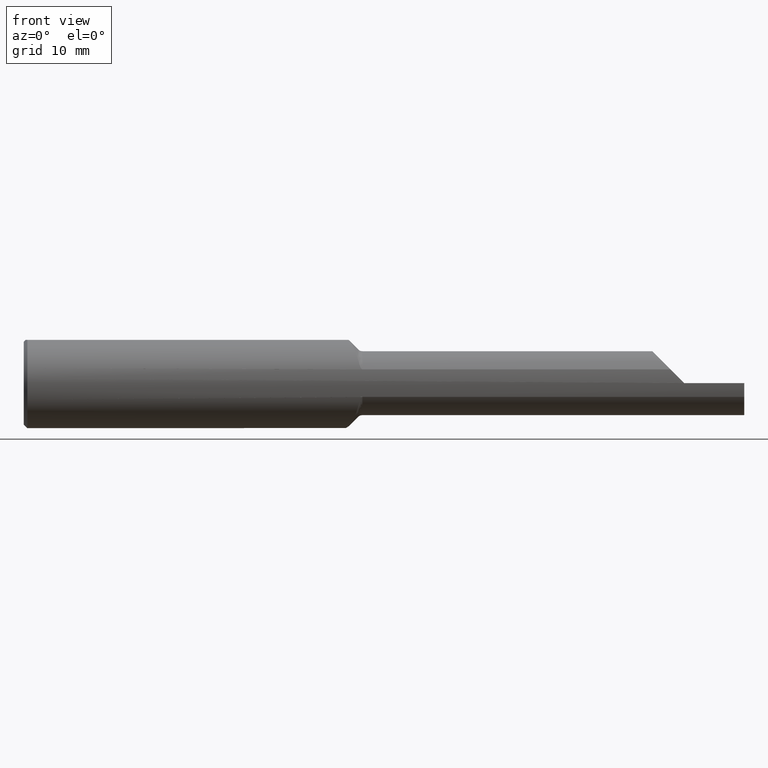
[diagram: clean part render]
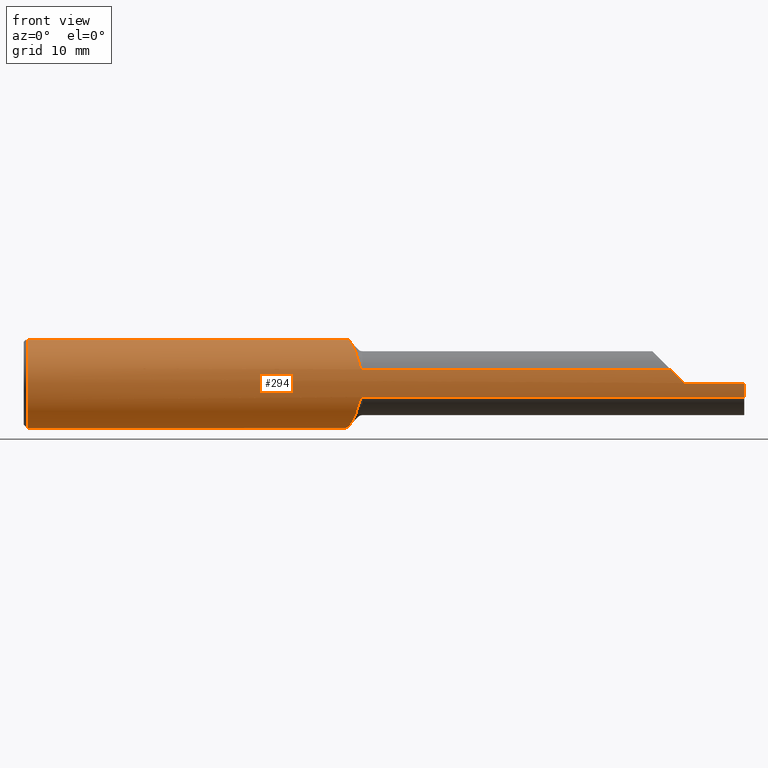
[diagram: same view with one face highlighted and labeled with its STEP entity id]
A machine part, front view. The second image highlights one B-rep face of the part: STEP entity #294.
In plain terms, the highlighted cylindrical surface (partial cylindrical patch) has radius 4.7587 mm, axis along (-1, -0, -0).
Its self-contained STEP definition (entity closure, byte-faithful):
#3 = VERTEX_POINT ( 'NONE', #110 ) ;
#8 = CARTESIAN_POINT ( 'NONE',  ( 1.287233112653665357, 0.1876308245808173403, -0.007313932636929163476 ) ) ;
#9 = ORIENTED_EDGE ( 'NONE', *, *, #937, .T. ) ;
#10 = CARTESIAN_POINT ( 'NONE',  ( 1.404482436652326305, -0.1768381092552934741, 0.06189371971083559160 ) ) ;
#12 = CARTESIAN_POINT ( 'NONE',  ( 0.01500000000000407431, 0.05073361804563106953, 0.1803500000000000381 ) ) ;
#13 = CARTESIAN_POINT ( 'NONE',  ( 1.302626747636566940, 0.1247708322425328670, -0.1403109275308252191 ) ) ;
#20 = CARTESIAN_POINT ( 'NONE',  ( 1.310463333522016383, 0.09439550663752108162, -0.1619501463759350501 ) ) ;
#36 = CARTESIAN_POINT ( 'NONE',  ( 1.394297910623151671, -0.1651165431336510947, -0.08885413392849973724 ) ) ;
#46 = CARTESIAN_POINT ( 'NONE',  ( 1.390253514619542274, -0.1553904236379953230, -0.1052844192764658127 ) ) ;
#53 = VERTEX_POINT ( 'NONE', #934 ) ;
#59 = DIRECTION ( 'NONE',  ( 1.000000000000000000, 0.000000000000000000, 0.000000000000000000 ) ) ;
#60 =( BOUNDED_CURVE ( )  B_SPLINE_CURVE ( 3, ( #556, #181, #634, #919 ),
 .UNSPECIFIED., .F., .F. ) 
 B_SPLINE_CURVE_WITH_KNOTS ( ( 4, 4 ),
 ( 4.715858429565469301, 5.023262387692851050 ),
 .UNSPECIFIED. ) 
 CURVE ( )  GEOMETRIC_REPRESENTATION_ITEM ( )  RATIONAL_B_SPLINE_CURVE ( ( 1.000000000000000000, 0.9921407246595839169, 0.9921407246595839169, 1.000000000000000000 ) ) 
 REPRESENTATION_ITEM ( '' )  );
#67 = LINE ( 'NONE', #1177, #766 ) ;
#83 = VERTEX_POINT ( 'NONE', #189 ) ;
#85 = CARTESIAN_POINT ( 'NONE',  ( 0.01500000000000407431, 0.000000000000000000, -0.1873499999999999888 ) ) ;
#86 = DIRECTION ( 'NONE',  ( -1.000000000000000000, -0.000000000000000000, -0.000000000000000000 ) ) ;
#91 = CARTESIAN_POINT ( 'NONE',  ( 1.287801414367355290, 0.1852400666705822929, 0.03079028734492995564 ) ) ;
#99 = CARTESIAN_POINT ( 'NONE',  ( 1.294523128465643991, 0.1573629312742696462, -0.1024417037855125112 ) ) ;
#103 = CARTESIAN_POINT ( 'NONE',  ( 1.378571360006487501, -0.1256812272418076082, -0.1393892198534536220 ) ) ;
#107 = VERTEX_POINT ( 'NONE', #12 ) ;
#110 = CARTESIAN_POINT ( 'NONE',  ( 1.322226761124839722, 0.05073361804563108340, 0.1803500000000000381 ) ) ;
#111 = CARTESIAN_POINT ( 'NONE',  ( 1.287216210840755215, 0.1877021456528151777, 0.005461557674737399330 ) ) ;
#128 = CARTESIAN_POINT ( 'NONE',  ( 1.408448095044418924, -0.1782309609829300645, -0.05774179208042244660 ) ) ;
#135 = CARTESIAN_POINT ( 'NONE',  ( 1.406875481135652528, -0.1778427423524751305, 0.05892677987795071071 ) ) ;
#139 = CARTESIAN_POINT ( 'NONE',  ( 1.410355339059327306, -0.1783697086546704169, 0.05730854678359931925 ) ) ;
#158 = FACE_OUTER_BOUND ( 'NONE', #736, .T. ) ;
#171 = CYLINDRICAL_SURFACE ( 'NONE', #830, 0.1873499999999999888 ) ;
#178 = EDGE_CURVE ( 'NONE', #214, #3, #527, .T. ) ;
#181 = CARTESIAN_POINT ( 'NONE',  ( 2.730726762412658104, -0.1872820046412290440, 0.01992323758734193540 ) ) ;
#189 = CARTESIAN_POINT ( 'NONE',  ( 1.354968261256594531, -0.05835000000000002685, 0.1780317387434050269 ) ) ;
#191 = ORIENTED_EDGE ( 'NONE', *, *, #1128, .T. ) ;
#198 = CIRCLE ( 'NONE', #948, 0.1873499999999999888 ) ;
#200 = CARTESIAN_POINT ( 'NONE',  ( 1.396159917231948544, -0.1685583276048898405, 0.08211736450972875745 ) ) ;
#201 = CARTESIAN_POINT ( 'NONE',  ( 3.000000000000000444, -0.1873499999999998222, -6.429183357567480113E-17 ) ) ;
#203 = CARTESIAN_POINT ( 'NONE',  ( 1.319337034764406891, 0.06115010668878900768, -0.1775186634490950599 ) ) ;
#205 = CARTESIAN_POINT ( 'NONE',  ( 1.381727261142596364, -0.1339314736004382222, -0.1314911332688373513 ) ) ;
#208 = CARTESIAN_POINT ( 'NONE',  ( 1.291376529822215735, 0.1703085496625234840, 0.07907260733930802921 ) ) ;
#214 = VERTEX_POINT ( 'NONE', #341 ) ;
#215 = CARTESIAN_POINT ( 'NONE',  ( 1.361924480952844796, -0.07925979411789360607, -0.1701257993398435087 ) ) ;
#216 = VECTOR ( 'NONE', #1019, 39.37007874015748143 ) ;
#219 = AXIS2_PLACEMENT_3D ( 'NONE', #468, #284, #291 ) ;
#223 = CARTESIAN_POINT ( 'NONE',  ( 1.406263810976656981, -0.1776167352753859341, -0.05960650000845362645 ) ) ;
#226 = VERTEX_POINT ( 'NONE', #999 ) ;
#237 = CARTESIAN_POINT ( 'NONE',  ( 0.01500000000000270388, -0.05073361804563293609, 0.1803500000000000381 ) ) ;
#262 = EDGE_CURVE ( 'NONE', #1137, #83, #881, .T. ) ;
#263 = ORIENTED_EDGE ( 'NONE', *, *, #707, .T. ) ;
#265 = CARTESIAN_POINT ( 'NONE',  ( 0.01500000000000407431, 0.000000000000000000, 0.000000000000000000 ) ) ;
#279 = LINE ( 'NONE', #654, #216 ) ;
#281 = CARTESIAN_POINT ( 'NONE',  ( 1.302344364721590653, 0.1258879061987050185, 0.1393028251938591699 ) ) ;
#283 = EDGE_CURVE ( 'NONE', #586, #533, #60, .T. ) ;
#284 = DIRECTION ( 'NONE',  ( -1.000000000000000000, -0.000000000000000000, -0.000000000000000000 ) ) ;
#287 = CARTESIAN_POINT ( 'NONE',  ( 1.300366864174358650, 0.1337561031483592289, -0.1317747899903143061 ) ) ;
#290 = AXIS2_PLACEMENT_3D ( 'NONE', #320, #1067, #505 ) ;
#291 = DIRECTION ( 'NONE',  ( 0.000000000000000000, 0.000000000000000000, 1.000000000000000000 ) ) ;
#294 = ADVANCED_FACE ( 'NONE', ( #158 ), #171, .T. ) ;
#297 = CARTESIAN_POINT ( 'NONE',  ( 1.322226761124839722, 0.05073361804563108340, 0.1803500000000000381 ) ) ;
#299 = CARTESIAN_POINT ( 'NONE',  ( 1.372103263110221683, -0.1082043198593515831, -0.1533523741457445966 ) ) ;
#307 = EDGE_CURVE ( 'NONE', #83, #330, #1174, .T. ) ;
#320 = CARTESIAN_POINT ( 'NONE',  ( 0.01500000000000407431, 0.000000000000000000, 0.000000000000000000 ) ) ;
#327 = CARTESIAN_POINT ( 'NONE',  ( 1.410355339059327306, -0.1783697086546704169, -0.05730854678359931925 ) ) ;
#330 = VERTEX_POINT ( 'NONE', #358 ) ;
#333 = DIRECTION ( 'NONE',  ( 1.000000000000000000, 0.000000000000000000, 0.000000000000000000 ) ) ;
#341 = CARTESIAN_POINT ( 'NONE',  ( 1.354968261256594753, -0.05834999999999997133, -0.1780317387434049159 ) ) ;
#345 = CARTESIAN_POINT ( 'NONE',  ( 1.354968261256594753, -0.05834999999999997133, -0.1780317387434049159 ) ) ;
#352 = EDGE_CURVE ( 'NONE', #459, #355, #67, .T. ) ;
#355 = VERTEX_POINT ( 'NONE', #390 ) ;
#358 = CARTESIAN_POINT ( 'NONE',  ( 1.392677669529663875, -0.1612201248618147231, 0.09543633395903709793 ) ) ;
#369 = CIRCLE ( 'NONE', #290, 0.1873499999999999888 ) ;
#372 = CARTESIAN_POINT ( 'NONE',  ( 1.296040650611813838, 0.1511645985810749770, 0.1113904599852967442 ) ) ;
#374 = CARTESIAN_POINT ( 'NONE',  ( 1.403568594541375614, -0.1762593147278525285, 0.06352779236237585114 ) ) ;
#377 = CARTESIAN_POINT ( 'NONE',  ( 1.310048160486880553, 0.09592332149754158321, 0.1614042140840566408 ) ) ;
#385 = CARTESIAN_POINT ( 'NONE',  ( 1.306401947506067973, 0.1100286960033594746, -0.1517643969169450158 ) ) ;
#389 = CARTESIAN_POINT ( 'NONE',  ( 1.410355339059327306, -0.1783697086546704169, 0.05730854678359931925 ) ) ;
#390 = CARTESIAN_POINT ( 'NONE',  ( 2.750000000000000444, -0.1873499999999999610, -6.429183357567478880E-17 ) ) ;
#400 = CARTESIAN_POINT ( 'NONE',  ( 2.140000000000000568, -0.1783697086546704169, -0.05730854678359931925 ) ) ;
#406 = CARTESIAN_POINT ( 'NONE',  ( 1.401088181464120952, -0.1744387181921877306, -0.06843700474515750087 ) ) ;
#414 = ORIENTED_EDGE ( 'NONE', *, *, #1059, .F. ) ;
#434 = EDGE_CURVE ( 'NONE', #1137, #538, #279, .T. ) ;
#454 = ORIENTED_EDGE ( 'NONE', *, *, #283, .T. ) ;
#459 = VERTEX_POINT ( 'NONE', #201 ) ;
#462 = CARTESIAN_POINT ( 'NONE',  ( 1.358450646806901307, -0.06897510976000158223, 0.1745493531930977782 ) ) ;
#466 = CARTESIAN_POINT ( 'NONE',  ( 1.294308147217179794, 0.1582425620373410780, 0.1010780435082064971 ) ) ;
#468 = CARTESIAN_POINT ( 'NONE',  ( 2.750000000000000444, 0.000000000000000000, 0.000000000000000000 ) ) ;
#472 = CARTESIAN_POINT ( 'NONE',  ( 1.288563873827742956, 0.1820409455122642406, -0.04473493752744760188 ) ) ;
#478 = CARTESIAN_POINT ( 'NONE',  ( 1.315888065801316564, 0.07390163537251728809, 0.1726011362085435041 ) ) ;
#490 = CARTESIAN_POINT ( 'NONE',  ( 1.392677669529665874, -0.1612201248618110316, -0.09543633395904392580 ) ) ;
#497 = DIRECTION ( 'NONE',  ( -1.000000000000000000, -0.000000000000000000, -0.000000000000000000 ) ) ;
#501 = CARTESIAN_POINT ( 'NONE',  ( 1.410355339059327306, -0.1783697086546704169, -0.05730854678359931925 ) ) ;
#505 = DIRECTION ( 'NONE',  ( 0.000000000000000000, 0.000000000000000000, -1.000000000000000000 ) ) ;
#508 = CARTESIAN_POINT ( 'NONE',  ( 2.750000000000000444, -0.1873488724278853934, 0.0006500000000006096170 ) ) ;
#514 = EDGE_CURVE ( 'NONE', #53, #1159, #677, .T. ) ;
#516 = DIRECTION ( 'NONE',  ( 1.000000000000000000, 0.000000000000000000, 0.000000000000000000 ) ) ;
#521 = CIRCLE ( 'NONE', #979, 0.1873499999999999888 ) ;
#527 = B_SPLINE_CURVE_WITH_KNOTS ( 'NONE', 3,
 ( #345, #715, #643, #740, #1031, #576, #569, #203, #935, #752, #20, #650, #385, #13, #287, #558, #99, #1114, #825, #656, #472, #1120, #745, #8, #111, #91, #853, #1035, #208, #466, #372, #663, #281, #1129, #377, #478, #838, #297 ),
 .UNSPECIFIED., .F., .F.,
 ( 4, 2, 2, 2, 2, 2, 2, 2, 2, 2, 2, 2, 2, 2, 2, 2, 2, 2, 4 ),
 ( 0.01237582103972411328, 0.01333573452915168961, 0.01429564801857926594, 0.01525556150800684227, 0.01621547499743442033, 0.01669543174214820763, 0.01717538848686199493, 0.01813530197628956606, 0.01909521546571713718, 0.02005512895514470831, 0.02053508569985849214, 0.02101504244457227596, 0.02197495593399984709, 0.02293486942342742169, 0.02389478291285498934, 0.02485469640228256394, 0.02581460989171013160, 0.02677452338113770619, 0.02773443687056527732 ),
 .UNSPECIFIED. ) ;
#533 = VERTEX_POINT ( 'NONE', #601 ) ;
#538 = VERTEX_POINT ( 'NONE', #237 ) ;
#545 = VECTOR ( 'NONE', #59, 39.37007874015748143 ) ;
#551 = CARTESIAN_POINT ( 'NONE',  ( 1.390249137328436690, -0.1553798969595272250, 0.1053022019421092637 ) ) ;
#556 = CARTESIAN_POINT ( 'NONE',  ( 2.750000000000000444, -0.1873488724278853934, 0.0006500000000006096170 ) ) ;
#558 = CARTESIAN_POINT ( 'NONE',  ( 1.296320311736755437, 0.1500294446420621930, -0.1129002043701442526 ) ) ;
#560 = EDGE_CURVE ( 'NONE', #226, #1159, #858, .T. ) ;
#567 = CARTESIAN_POINT ( 'NONE',  ( 1.352489247483494639, -0.05073361804563127769, 0.1803500000000000381 ) ) ;
#569 = CARTESIAN_POINT ( 'NONE',  ( 1.325940143936352733, 0.03734480488786563745, -0.1840042851911080635 ) ) ;
#571 = EDGE_CURVE ( 'NONE', #459, #53, #521, .T. ) ;
#576 = CARTESIAN_POINT ( 'NONE',  ( 1.329350153915703547, 0.02533118765943541753, -0.1860229881109676242 ) ) ;
#585 = B_SPLINE_CURVE_WITH_KNOTS ( 'NONE', 3,
 ( #490, #46, #872, #205, #103, #299, #944, #215, #1116, #939 ),
 .UNSPECIFIED., .F., .F.,
 ( 4, 2, 2, 2, 4 ),
 ( 0.008839285664186631586, 0.009723419508071002443, 0.01060755335195537330, 0.01149168719583974242, 0.01237582103972411328 ),
 .UNSPECIFIED. ) ;
#586 = VERTEX_POINT ( 'NONE', #508 ) ;
#596 = CIRCLE ( 'NONE', #219, 0.1873499999999999888 ) ;
#601 = CARTESIAN_POINT ( 'NONE',  ( 2.693341453216400616, -0.1783697086546702781, 0.05730854678359963150 ) ) ;
#608 = CARTESIAN_POINT ( 'NONE',  ( 1.404519358739342749, -0.1768576582156872468, -0.06183736089970494343 ) ) ;
#627 = CARTESIAN_POINT ( 'NONE',  ( 1.361895869629351274, -0.07917488098667772867, 0.1701614833739454880 ) ) ;
#632 = CARTESIAN_POINT ( 'NONE',  ( 2.140000000000000568, -0.1783697086546704169, 0.05730854678359931925 ) ) ;
#634 = CARTESIAN_POINT ( 'NONE',  ( 2.711690972638300057, -0.1842652404698977286, 0.03895902736170058639 ) ) ;
#643 = CARTESIAN_POINT ( 'NONE',  ( 1.347483243306722756, -0.03515109766243828399, -0.1844245065291031938 ) ) ;
#646 = DIRECTION ( 'NONE',  ( 0.000000000000000000, 0.000000000000000000, -1.000000000000000000 ) ) ;
#650 = CARTESIAN_POINT ( 'NONE',  ( 1.307730347949919825, 0.1048826378083085042, -0.1553640687897695771 ) ) ;
#654 = CARTESIAN_POINT ( 'NONE',  ( 3.000000000000000444, -0.05073361804563126382, 0.1803499999999999548 ) ) ;
#656 = CARTESIAN_POINT ( 'NONE',  ( 1.288954375347812764, 0.1804053881614880450, -0.05093214486733167734 ) ) ;
#663 = CARTESIAN_POINT ( 'NONE',  ( 1.300080258543535150, 0.1348995831369801668, 0.1306165108605437108 ) ) ;
#667 = B_SPLINE_CURVE_WITH_KNOTS ( 'NONE', 3,
 ( #389, #950, #755, #135, #835, #10, #374, #742, #1024, #200, #932, #785 ),
 .UNSPECIFIED., .F., .F.,
 ( 4, 2, 2, 2, 2, 4 ),
 ( 0.000000000000000000, 7.502229733565810325E-05, 0.0001500445946713162065, 0.0003000891893426317625, 0.0006001783786852614650, 0.001200356757370529435 ),
 .UNSPECIFIED. ) ;
#669 = EDGE_CURVE ( 'NONE', #847, #533, #904, .T. ) ;
#677 = LINE ( 'NONE', #400, #808 ) ;
#683 = ORIENTED_EDGE ( 'NONE', *, *, #1090, .T. ) ;
#684 = CARTESIAN_POINT ( 'NONE',  ( 1.409362302432487946, -0.1783697086547828825, -0.05730854678350850995 ) ) ;
#705 = CARTESIAN_POINT ( 'NONE',  ( 1.378598829545119031, -0.1257548260562137699, 0.1393274407047323804 ) ) ;
#707 = EDGE_CURVE ( 'NONE', #107, #3, #1169, .T. ) ;
#709 = CARTESIAN_POINT ( 'NONE',  ( 3.000000000000000444, 0.05073361804563126382, 0.1803499999999999548 ) ) ;
#712 = CARTESIAN_POINT ( 'NONE',  ( 1.354968261256594531, -0.05835000000000002685, 0.1780317387434050269 ) ) ;
#715 = CARTESIAN_POINT ( 'NONE',  ( 1.351217303120553437, -0.04690544817629522384, -0.1817826968794462594 ) ) ;
#726 = CARTESIAN_POINT ( 'NONE',  ( 1.354144082012933570, -0.05583534595055402588, 0.1788559179870658489 ) ) ;
#736 = EDGE_LOOP ( 'NONE', ( #1162, #1142, #1082, #191, #454, #1000, #1091, #903, #882, #1032, #683, #9, #263, #1134, #414, #1179 ) ) ;
#740 = CARTESIAN_POINT ( 'NONE',  ( 1.340038752404291822, -0.01100734393750758301, -0.1874215480002736633 ) ) ;
#742 = CARTESIAN_POINT ( 'NONE',  ( 1.401070010791239051, -0.1744205134096491194, 0.06848301048429150661 ) ) ;
#745 = CARTESIAN_POINT ( 'NONE',  ( 1.287709081643609421, 0.1856286585800343836, -0.02610982525124928497 ) ) ;
#752 = CARTESIAN_POINT ( 'NONE',  ( 1.311874062265819596, 0.08903011435619209712, -0.1649581271952396400 ) ) ;
#755 = CARTESIAN_POINT ( 'NONE',  ( 1.408430780961237749, -0.1782286057343101526, 0.05774920339049818135 ) ) ;
#766 = VECTOR ( 'NONE', #1088, 39.37007874015748143 ) ;
#775 = DIRECTION ( 'NONE',  ( 0.000000000000000000, 0.000000000000000000, -1.000000000000000000 ) ) ;
#785 = CARTESIAN_POINT ( 'NONE',  ( 1.392677669529663875, -0.1612201248618147231, 0.09543633395903709793 ) ) ;
#802 = CARTESIAN_POINT ( 'NONE',  ( 3.000000000000000444, 0.000000000000000000, 0.000000000000000000 ) ) ;
#808 = VECTOR ( 'NONE', #497, 39.37007874015748143 ) ;
#823 = CARTESIAN_POINT ( 'NONE',  ( 1.381692117238096040, -0.1338399153164699096, 0.1315807004239945843 ) ) ;
#825 = CARTESIAN_POINT ( 'NONE',  ( 1.290339301653355530, 0.1746239680236501279, -0.06904456622799011456 ) ) ;
#829 = CARTESIAN_POINT ( 'NONE',  ( 1.368703818231176594, -0.09874118849380608687, 0.1596050434607464430 ) ) ;
#830 = AXIS2_PLACEMENT_3D ( 'NONE', #802, #86, #909 ) ;
#835 = CARTESIAN_POINT ( 'NONE',  ( 1.406236883445896035, -0.1776066927686673347, 0.05963654009861616562 ) ) ;
#838 = CARTESIAN_POINT ( 'NONE',  ( 1.318968547943675906, 0.06250301213542786005, 0.1770391935437746200 ) ) ;
#847 = VERTEX_POINT ( 'NONE', #139 ) ;
#853 = CARTESIAN_POINT ( 'NONE',  ( 1.288393214463352310, 0.1827501551820267522, 0.04314473373083424490 ) ) ;
#858 = B_SPLINE_CURVE_WITH_KNOTS ( 'NONE', 3,
 ( #864, #36, #975, #1054, #406, #1049, #608, #223, #953, #128, #684, #501 ),
 .UNSPECIFIED., .F., .F.,
 ( 4, 2, 2, 2, 2, 4 ),
 ( 4.336808689942017736E-19, 0.0005951497663342932270, 0.0008927246495014363710, 0.001041512091085012009, 0.001115905811876793594, 0.001190299532668575178 ),
 .UNSPECIFIED. ) ;
#864 = CARTESIAN_POINT ( 'NONE',  ( 1.392677669529665874, -0.1612201248618110316, -0.09543633395904392580 ) ) ;
#872 = CARTESIAN_POINT ( 'NONE',  ( 1.387558038309074870, -0.1487564718944884012, -0.1144511678342005345 ) ) ;
#877 = CARTESIAN_POINT ( 'NONE',  ( 3.000000000000000444, 0.000000000000000000, 0.000000000000000000 ) ) ;
#881 = B_SPLINE_CURVE_WITH_KNOTS ( 'NONE', 3,
 ( #986, #1006, #726, #712 ),
 .UNSPECIFIED., .F., .F.,
 ( 4, 4 ),
 ( 7.627425471891399035E-07, 0.0002102370372012494050 ),
 .UNSPECIFIED. ) ;
#882 = ORIENTED_EDGE ( 'NONE', *, *, #262, .F. ) ;
#885 = VECTOR ( 'NONE', #333, 39.37007874015748143 ) ;
#903 = ORIENTED_EDGE ( 'NONE', *, *, #307, .F. ) ;
#904 = LINE ( 'NONE', #632, #545 ) ;
#909 = DIRECTION ( 'NONE',  ( 0.000000000000000000, 0.000000000000000000, 1.000000000000000000 ) ) ;
#914 = DIRECTION ( 'NONE',  ( 1.000000000000000000, -0.000000000000000000, -0.000000000000000000 ) ) ;
#919 = CARTESIAN_POINT ( 'NONE',  ( 2.693341453216400616, -0.1783697086546702781, 0.05730854678359963150 ) ) ;
#932 = CARTESIAN_POINT ( 'NONE',  ( 1.394298152198937712, -0.1651171240844257759, 0.08885315253124449753 ) ) ;
#934 = CARTESIAN_POINT ( 'NONE',  ( 3.000000000000000444, -0.1783697086546704169, -0.05730854678359924986 ) ) ;
#935 = CARTESIAN_POINT ( 'NONE',  ( 1.316243151538838196, 0.07258185416455216477, -0.1731530736261579773 ) ) ;
#937 = EDGE_CURVE ( 'NONE', #988, #107, #198, .T. ) ;
#939 = CARTESIAN_POINT ( 'NONE',  ( 1.354968261256594753, -0.05834999999999997133, -0.1780317387434049159 ) ) ;
#944 = CARTESIAN_POINT ( 'NONE',  ( 1.368767343164415839, -0.09892104215541601409, -0.1594977428790701757 ) ) ;
#948 = AXIS2_PLACEMENT_3D ( 'NONE', #265, #914, #646 ) ;
#950 = CARTESIAN_POINT ( 'NONE',  ( 1.409353365409088399, -0.1783697086546705002, 0.05730854678359935395 ) ) ;
#953 = CARTESIAN_POINT ( 'NONE',  ( 1.406911505120929995, -0.1778535538483544953, -0.05889400129952070823 ) ) ;
#975 = CARTESIAN_POINT ( 'NONE',  ( 1.396169724070546403, -0.1685762960924688802, -0.08208163340012639142 ) ) ;
#979 = AXIS2_PLACEMENT_3D ( 'NONE', #877, #516, #775 ) ;
#986 = CARTESIAN_POINT ( 'NONE',  ( 1.352489247483494639, -0.05073361804563127769, 0.1803500000000000381 ) ) ;
#988 = VERTEX_POINT ( 'NONE', #85 ) ;
#999 = CARTESIAN_POINT ( 'NONE',  ( 1.392677669529665874, -0.1612201248618110316, -0.09543633395904392580 ) ) ;
#1000 = ORIENTED_EDGE ( 'NONE', *, *, #669, .F. ) ;
#1006 = CARTESIAN_POINT ( 'NONE',  ( 1.353317762031590155, -0.05329669918612141288, 0.1796289887463177470 ) ) ;
#1019 = DIRECTION ( 'NONE',  ( -1.000000000000000000, -0.000000000000000000, -0.000000000000000000 ) ) ;
#1024 = CARTESIAN_POINT ( 'NONE',  ( 1.399748379481699834, -0.1730365193890565645, 0.07191781888006558432 ) ) ;
#1031 = CARTESIAN_POINT ( 'NONE',  ( 1.336382994110499434, 0.001209398411742116947, -0.1877358743806105679 ) ) ;
#1032 = ORIENTED_EDGE ( 'NONE', *, *, #434, .T. ) ;
#1035 = CARTESIAN_POINT ( 'NONE',  ( 1.290172451185788605, 0.1753186121875666414, 0.06724932333031373444 ) ) ;
#1049 = CARTESIAN_POINT ( 'NONE',  ( 1.403599855037234390, -0.1762798456443805672, -0.06347090199729087112 ) ) ;
#1054 = CARTESIAN_POINT ( 'NONE',  ( 1.399768993697486641, -0.1730593490829001047, -0.07186319716290821835 ) ) ;
#1059 = EDGE_CURVE ( 'NONE', #226, #214, #585, .T. ) ;
#1067 = DIRECTION ( 'NONE',  ( 1.000000000000000000, -0.000000000000000000, -0.000000000000000000 ) ) ;
#1081 = CARTESIAN_POINT ( 'NONE',  ( 1.387505379083927126, -0.1486247539658123173, 0.1146180010495324586 ) ) ;
#1082 = ORIENTED_EDGE ( 'NONE', *, *, #352, .T. ) ;
#1088 = DIRECTION ( 'NONE',  ( -1.000000000000000000, -0.000000000000000000, -0.000000000000000000 ) ) ;
#1090 = EDGE_CURVE ( 'NONE', #538, #988, #369, .T. ) ;
#1091 = ORIENTED_EDGE ( 'NONE', *, *, #1141, .T. ) ;
#1094 = CARTESIAN_POINT ( 'NONE',  ( 1.372098171548490342, -0.1081911845720505000, 0.1533658358000757338 ) ) ;
#1108 = CARTESIAN_POINT ( 'NONE',  ( 1.392677669529663875, -0.1612201248618147231, 0.09543633395903709793 ) ) ;
#1114 = CARTESIAN_POINT ( 'NONE',  ( 1.291543747921855667, 0.1696157454200300785, -0.08054746252562350328 ) ) ;
#1116 = CARTESIAN_POINT ( 'NONE',  ( 1.358423102835126350, -0.06889107032234746686, -0.1745768971648734569 ) ) ;
#1120 = CARTESIAN_POINT ( 'NONE',  ( 1.287942788268092720, 0.1846460632819053871, -0.03234117797913948350 ) ) ;
#1128 = EDGE_CURVE ( 'NONE', #355, #586, #596, .T. ) ;
#1129 = CARTESIAN_POINT ( 'NONE',  ( 1.307307602494415022, 0.1064794760884438529, 0.1546452818744089297 ) ) ;
#1134 = ORIENTED_EDGE ( 'NONE', *, *, #178, .F. ) ;
#1137 = VERTEX_POINT ( 'NONE', #567 ) ;
#1141 = EDGE_CURVE ( 'NONE', #847, #330, #667, .T. ) ;
#1142 = ORIENTED_EDGE ( 'NONE', *, *, #571, .F. ) ;
#1159 = VERTEX_POINT ( 'NONE', #327 ) ;
#1162 = ORIENTED_EDGE ( 'NONE', *, *, #514, .F. ) ;
#1169 = LINE ( 'NONE', #709, #885 ) ;
#1174 = B_SPLINE_CURVE_WITH_KNOTS ( 'NONE', 3,
 ( #1192, #462, #627, #829, #1094, #705, #823, #1081, #551, #1108 ),
 .UNSPECIFIED., .F., .F.,
 ( 4, 2, 2, 2, 4 ),
 ( 0.0002102370372012494050, 0.001095323943326039938, 0.001980410849450830579, 0.002865497755575621003, 0.003750584661700411427 ),
 .UNSPECIFIED. ) ;
#1177 = CARTESIAN_POINT ( 'NONE',  ( 3.000000000000000444, -0.1873499999999999610, -6.429183357567480113E-17 ) ) ;
#1179 = ORIENTED_EDGE ( 'NONE', *, *, #560, .T. ) ;
#1192 = CARTESIAN_POINT ( 'NONE',  ( 1.354968261256594531, -0.05835000000000002685, 0.1780317387434050269 ) ) ;